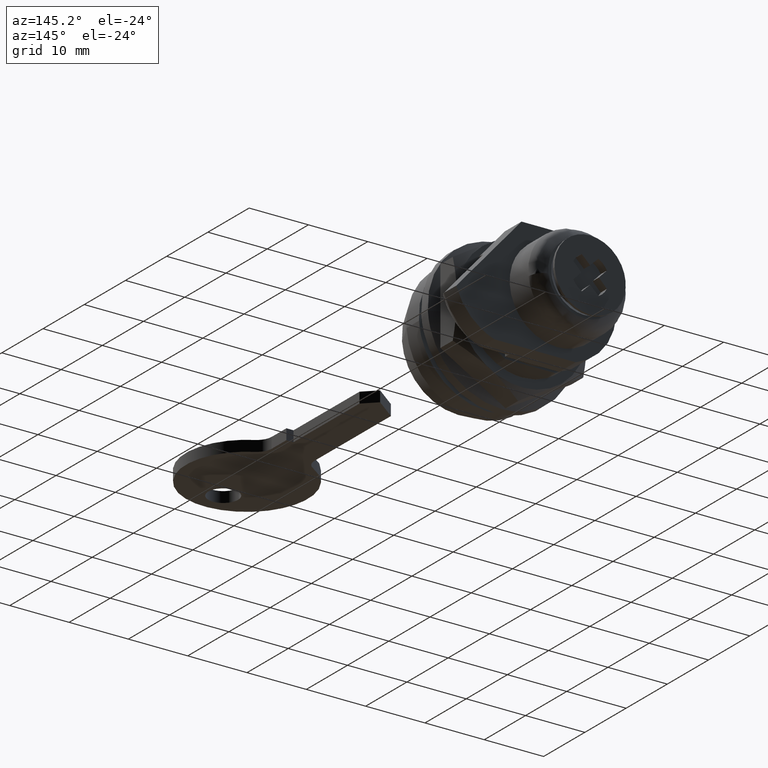
[diagram: clean part render]
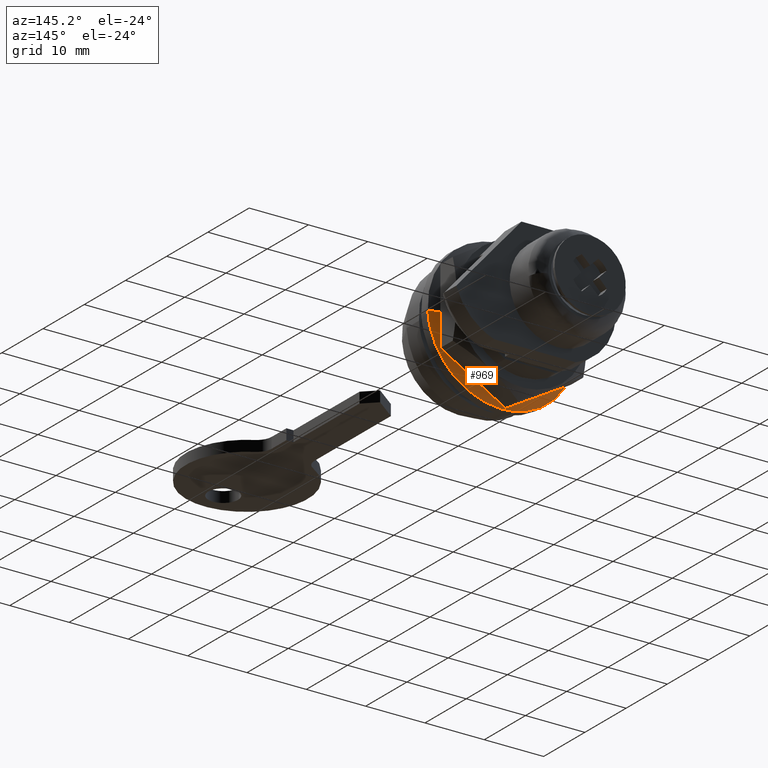
[diagram: same view with one face highlighted and labeled with its STEP entity id]
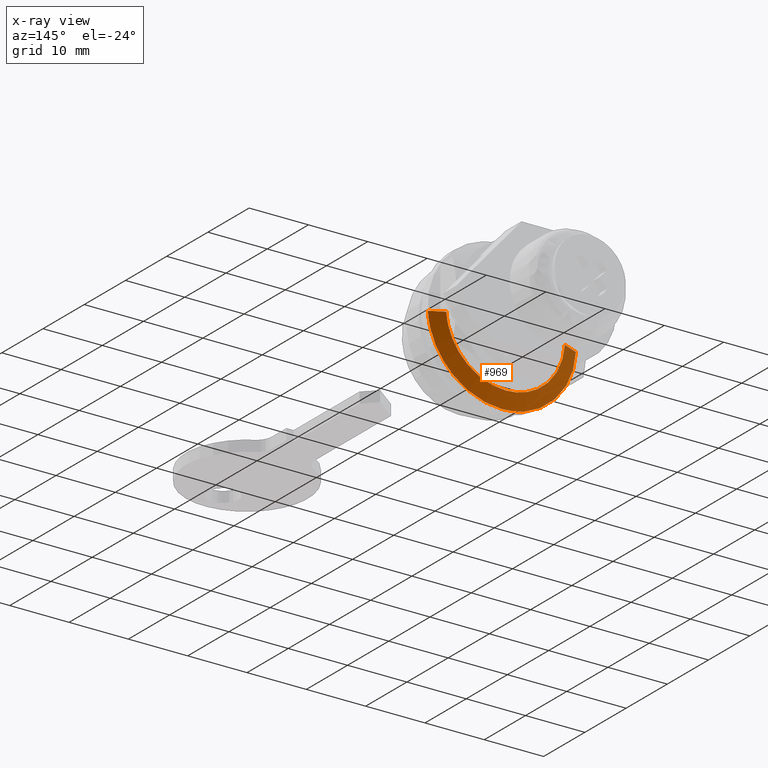
[diagram: x-ray of the same camera — body ghosted, the highlighted face saturated]
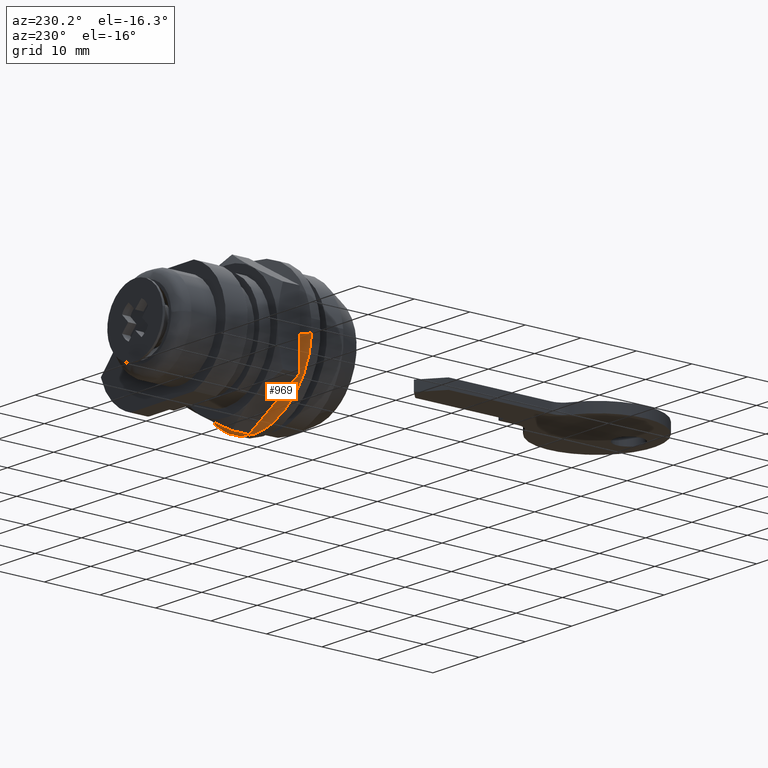
[diagram: same view with one face highlighted and labeled with its STEP entity id]
A machine part, auxiliary view. The second image highlights one B-rep face of the part: STEP entity #969.
The next image is the same camera in x-ray: the body ghosted, the highlighted face saturated — about 8% of this face is hidden behind the body in this view.
A second angle (auxiliary view) of the same face is appended — the face is thin or edge-on in the first view.
In plain terms, the highlighted face is a freeform B-spline surface patch.
Its self-contained STEP definition (entity closure, byte-faithful):
#875=CARTESIAN_POINT('',(11.522499999999711,9.922671609495408,-0.542673364109246));
#876=CARTESIAN_POINT('',(11.522499999999708,9.439425482496274,-9.378730082396039));
#877=CARTESIAN_POINT('',(11.522499999999710,0.606669861627641,-9.918964559317283));
#878=CARTESIAN_POINT('',(11.522499999999706,-9.312294697689657,-10.525634420944925));
#879=CARTESIAN_POINT('',(11.522499999999710,-9.918964559317297,-0.606669861627627));
#880=CARTESIAN_POINT('',(10.576937499999602,12.545314844646688,-0.686106371195360));
#881=CARTESIAN_POINT('',(10.576937499999595,11.934342815212716,-11.857605124614288));
#882=CARTESIAN_POINT('',(10.576937499999600,0.767017666249667,-12.540627990797271));
#883=CARTESIAN_POINT('',(10.576937499999595,-11.773610324547617,-13.307645657046937));
#884=CARTESIAN_POINT('',(10.576937499999600,-12.540627990797280,-0.767017666249653));
#892=(BOUNDED_SURFACE()B_SPLINE_SURFACE(2,1,((#875,#880),(#876,#881),(#877,#882),(#878,#883),(#879,#884)),.UNSPECIFIED.,.F.,.F.,.U.)B_SPLINE_SURFACE_WITH_KNOTS((3,2,3),(2,2),(0.0,19.151474716491890,39.968295060504822),(0.0,2.791580019955184),.UNSPECIFIED.)GEOMETRIC_REPRESENTATION_ITEM()RATIONAL_B_SPLINE_SURFACE(((0.956886118190660,0.956886118190660),(0.730538238691624,0.730538238691624),(1.0,1.0),(0.707106781186548,0.707106781186548),(1.0,1.0)))REPRESENTATION_ITEM('')SURFACE());
#893=CARTESIAN_POINT('',(11.499999976516669,9.985078409690434,-0.546086492184701));
#894=VERTEX_POINT('',#893);
#895=CARTESIAN_POINT('',(11.499999999999700,0.0,-9.999999999999986));
#896=VERTEX_POINT('',#895);
#897=CARTESIAN_POINT('',(11.499999976516671,9.985078409690434,-0.546086492184701));
#898=CARTESIAN_POINT('',(11.499999999999703,9.468041316288874,-9.999999999999986));
#899=CARTESIAN_POINT('',(11.499999999999700,0.0,-9.999999999999986));
#907=(BOUNDED_CURVE()B_SPLINE_CURVE(2,(#897,#898,#899),.UNSPECIFIED.,.F.,.U.)B_SPLINE_CURVE_WITH_KNOTS((3,3),(0.259552626508999,0.500000000000000),.UNSPECIFIED.)CURVE()GEOMETRIC_REPRESENTATION_ITEM()RATIONAL_B_SPLINE_CURVE((0.978472077043168,0.718298379291921,1.0))REPRESENTATION_ITEM(''));
#908=EDGE_CURVE('',#894,#896,#907,.T.);
#909=ORIENTED_EDGE('',*,*,#908,.T.);
#910=CARTESIAN_POINT('',(11.500000000718069,-9.981348004449792,-0.610485031885466));
#911=VERTEX_POINT('',#910);
#912=CARTESIAN_POINT('',(11.499999999999700,0.0,-9.999999999999986));
#913=CARTESIAN_POINT('',(11.499999999999702,-9.407061012132903,-9.999999999999986));
#914=CARTESIAN_POINT('',(11.500000000718074,-9.981348004449792,-0.610485031885466));
#922=(BOUNDED_CURVE()B_SPLINE_CURVE(2,(#912,#913,#914),.UNSPECIFIED.,.F.,.U.)B_SPLINE_CURVE_WITH_KNOTS((3,3),(0.500000000000000,0.739332968523021),.UNSPECIFIED.)CURVE()GEOMETRIC_REPRESENTATION_ITEM()RATIONAL_B_SPLINE_CURVE((1.0,0.719603985924455,0.976072055134693))REPRESENTATION_ITEM(''));
#923=EDGE_CURVE('',#896,#911,#922,.T.);
#924=ORIENTED_EDGE('',*,*,#923,.T.);
#925=CARTESIAN_POINT('',(10.599999999999611,-12.476684980270321,-0.763106744235134));
#926=VERTEX_POINT('',#925);
#927=CARTESIAN_POINT('',(11.500000000718069,-9.981348004449792,-0.610485031885466));
#928=CARTESIAN_POINT('',(10.599999999999611,-12.476684980270321,-0.763106744235134));
#929=QUASI_UNIFORM_CURVE('',1,(#927,#928),.UNSPECIFIED.,.F.,.U.);
#930=EDGE_CURVE('',#911,#926,#929,.T.);
#931=ORIENTED_EDGE('',*,*,#930,.T.);
#932=CARTESIAN_POINT('',(10.599999999999600,0.0,-12.499999999999989));
#933=VERTEX_POINT('',#932);
#934=CARTESIAN_POINT('',(10.599999999999600,0.0,-12.499999999999989));
#935=CARTESIAN_POINT('',(10.599999999999598,-11.758825836134479,-12.499999999999986));
#936=CARTESIAN_POINT('',(10.599999999999605,-12.476684980270312,-0.763106744235134));
#944=(BOUNDED_CURVE()B_SPLINE_CURVE(2,(#934,#935,#936),.UNSPECIFIED.,.F.,.U.)B_SPLINE_CURVE_WITH_KNOTS((3,3),(0.500000000000000,0.739332962239234),.UNSPECIFIED.)CURVE()GEOMETRIC_REPRESENTATION_ITEM()RATIONAL_B_SPLINE_CURVE((1.0,0.719603993286369,0.976072041667341))REPRESENTATION_ITEM(''));
#945=EDGE_CURVE('',#933,#926,#944,.T.);
#946=ORIENTED_EDGE('',*,*,#945,.F.);
#947=CARTESIAN_POINT('',(10.599999999948549,12.481347936563280,-0.682608006100930));
#948=VERTEX_POINT('',#947);
#949=CARTESIAN_POINT('',(10.599999999948549,12.481347936563280,-0.682608006100930));
#950=CARTESIAN_POINT('',(10.599999999999598,11.835051844186394,-12.499999999999986));
#951=CARTESIAN_POINT('',(10.599999999999600,0.0,-12.499999999999989));
#959=(BOUNDED_CURVE()B_SPLINE_CURVE(2,(#949,#950,#951),.UNSPECIFIED.,.F.,.U.)B_SPLINE_CURVE_WITH_KNOTS((3,3),(0.259552623607474,0.500000000000000),.UNSPECIFIED.)CURVE()GEOMETRIC_REPRESENTATION_ITEM()RATIONAL_B_SPLINE_CURVE((0.978472083322302,0.718298375892573,1.0))REPRESENTATION_ITEM(''));
#960=EDGE_CURVE('',#948,#933,#959,.T.);
#961=ORIENTED_EDGE('',*,*,#960,.F.);
#962=CARTESIAN_POINT('',(11.499999976516669,9.985078409690434,-0.546086492184701));
#963=CARTESIAN_POINT('',(10.599999999948549,12.481347936563280,-0.682608006100930));
#964=QUASI_UNIFORM_CURVE('',1,(#962,#963),.UNSPECIFIED.,.F.,.U.);
#965=EDGE_CURVE('',#894,#948,#964,.T.);
#966=ORIENTED_EDGE('',*,*,#965,.F.);
#967=EDGE_LOOP('',(#909,#924,#931,#946,#961,#966));
#968=FACE_OUTER_BOUND('',#967,.T.);
#969=ADVANCED_FACE('',(#968),#892,.T.);